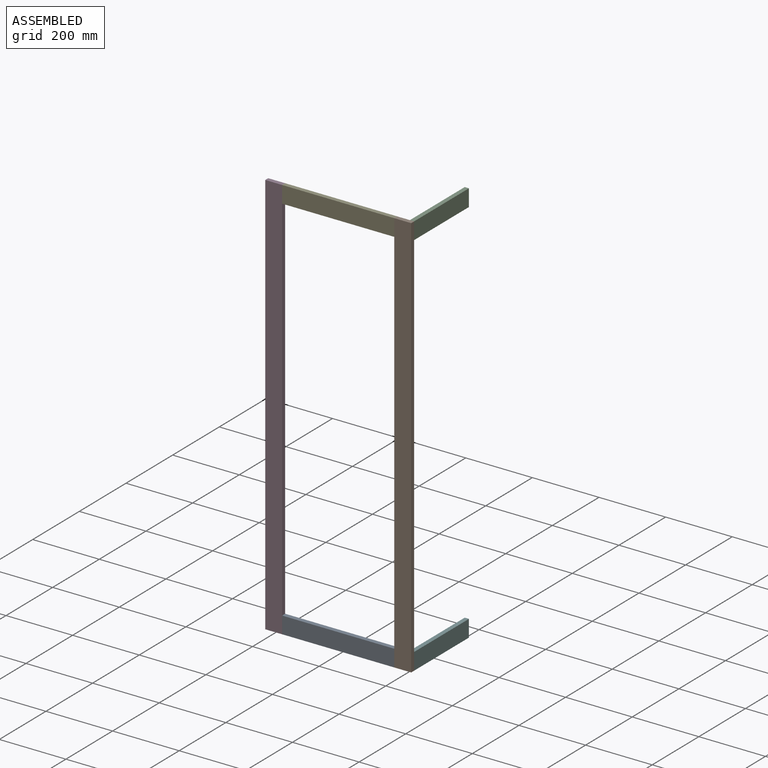
[diagram: assembled view]
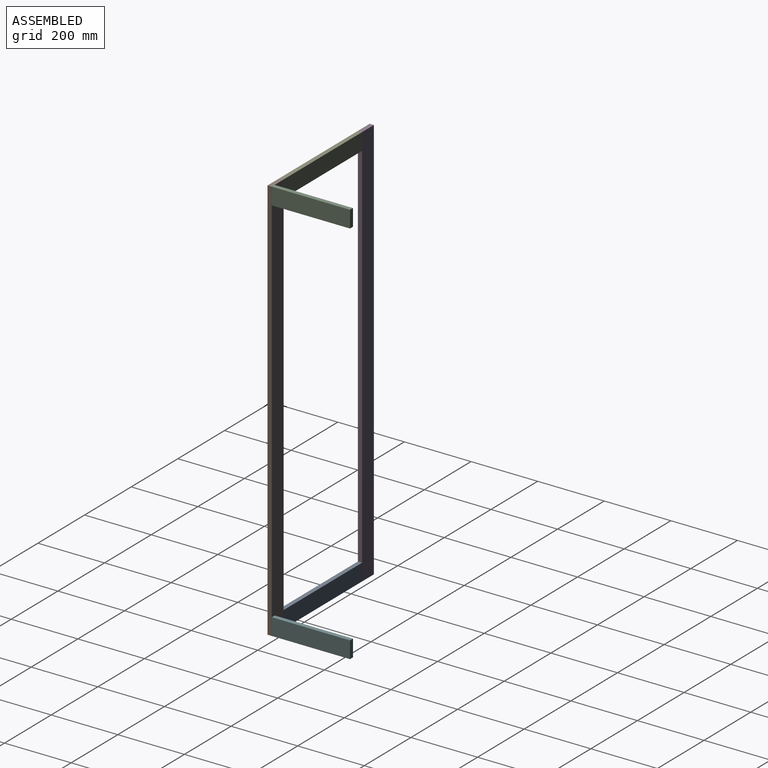
[diagram: assembled view, second angle]
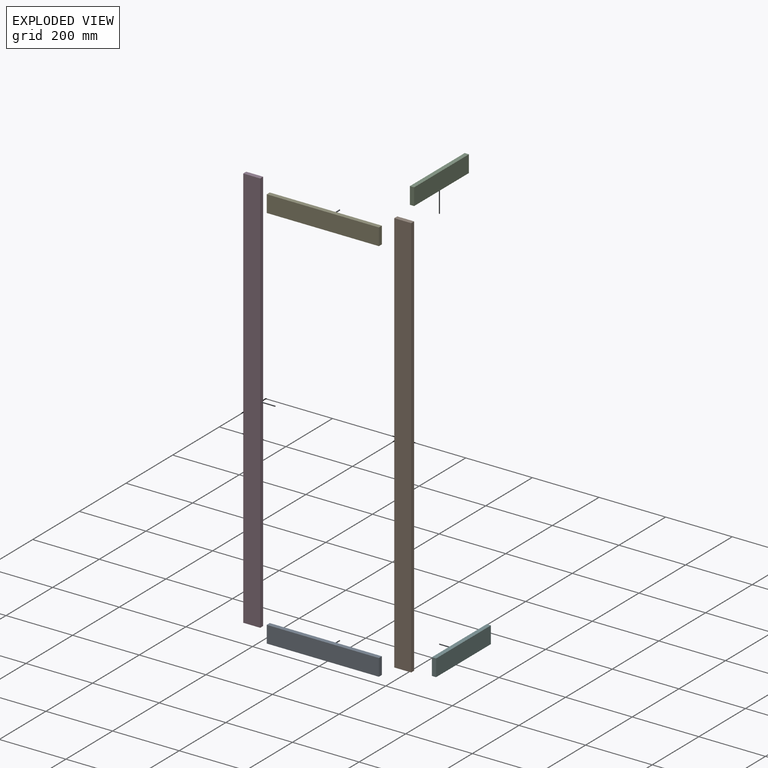
[diagram: exploded view]
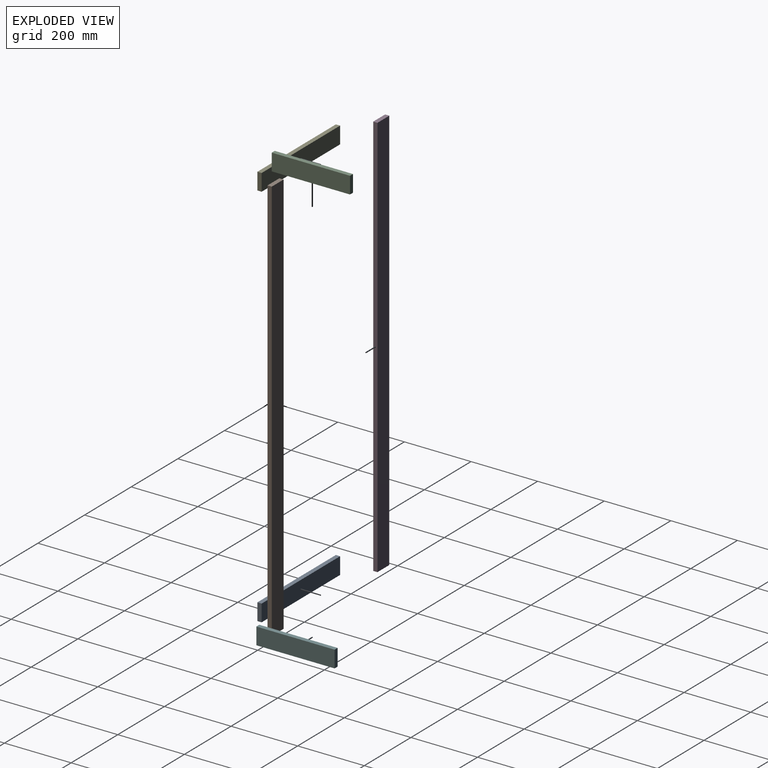
[diagram: exploded view, second angle]
ASSEMBLY  parts=6 mates=15
PART A: 6 faces, bbox 336.6x12.7x50.8 mm
  f0: plane 50.8x12.7mm, normal (1,0,0), area 645.2mm2, adj f1,f3,f4,f5
  f1: plane 336.55x12.7mm, normal (0,0,1), area 4274.2mm2, adj f0,f2,f4,f5
  f2: plane 50.8x12.7mm, normal (-1,0,0), area 645.2mm2, adj f1,f3,f4,f5
  f3: plane 336.55x12.7mm, normal (0,0,-1), area 4274.2mm2, adj f0,f2,f4,f5
  f4: plane 336.55x50.8mm, normal (0,-1,0), area 17096.7mm2, adj f0,f1,f2,f3
  f5: plane 336.55x50.8mm, normal (0,1,0), area 17096.7mm2, adj f0,f1,f2,f3
PART B: 6 faces, bbox 50.8x12.7x1219.2 mm
  f0: plane 1219.2x12.7mm, normal (1,0,0), area 15483.8mm2, adj f1,f3,f4,f5
  f1: plane 50.8x12.7mm, normal (0,0,1), area 645.2mm2, adj f0,f2,f4,f5
  f2: plane 1219.2x12.7mm, normal (-1,0,0), area 15483.8mm2, adj f1,f3,f4,f5
  f3: plane 50.8x12.7mm, normal (0,0,-1), area 645.2mm2, adj f0,f2,f4,f5
  f4: plane 1219.2x50.8mm, normal (0,-1,0), area 61935.4mm2, adj f0,f1,f2,f3
  f5: plane 1219.2x50.8mm, normal (0,1,0), area 61935.4mm2, adj f0,f1,f2,f3
PART C: 6 faces, bbox 235x12.7x50.8 mm
  f0: plane 50.8x12.7mm, normal (1,0,0), area 645.2mm2, adj f1,f3,f4,f5
  f1: plane 234.95x12.7mm, normal (0,0,1), area 2983.9mm2, adj f0,f2,f4,f5
  f2: plane 50.8x12.7mm, normal (-1,0,0), area 645.2mm2, adj f1,f3,f4,f5
  f3: plane 234.95x12.7mm, normal (0,0,-1), area 2983.9mm2, adj f0,f2,f4,f5
  f4: plane 234.95x50.8mm, normal (0,-1,0), area 11935.5mm2, adj f0,f1,f2,f3
  f5: plane 234.95x50.8mm, normal (0,1,0), area 11935.5mm2, adj f0,f1,f2,f3
PART D: same geometry as B
PART E: same geometry as A
PART F: same geometry as C
PLACE A t=(-193.67,0,-574.24)mm
PLACE B at identity fixed
PLACE C rot(axis=(0,0,1),90deg) t=(12.7,117.48,594.16)mm
PLACE D t=(-387.35,0,0)mm
PLACE E t=(-193.67,0,594.16)mm
PLACE F rot(axis=(0,0,-1),90deg) t=(25.4,117.47,-574.24)mm
MATE planar B.f4 <-> A.f4  axis (0,-1,0) through (-25.4,-12.7,-599.64)mm
MATE planar E.f4 <-> B.f4  axis (0,-1,0) through (-25.4,-12.7,619.56)mm
MATE planar F.f5 <-> B.f0  axis (1,0,0) through (25.4,0,-599.64)mm
MATE planar B.f1 <-> C.f1  axis (0,0,1) through (25.4,0,619.56)mm
MATE planar A.f3 <-> B.f3  axis (0,0,-1) through (-25.4,-12.7,-599.64)mm
MATE planar B.f5 <-> F.f0  axis (0,1,0) through (25.4,0,-599.64)mm
MATE planar D.f0 <-> A.f2  axis (1,0,0) through (-361.95,-12.7,-599.64)mm
MATE planar E.f0 <-> B.f2  axis (1,0,0) through (-25.4,-12.7,619.56)mm
MATE planar D.f4 <-> A.f4  axis (0,-1,0) through (-361.95,-12.7,-599.64)mm
MATE planar D.f3 <-> A.f3  axis (0,0,-1) through (-361.95,-12.7,-599.64)mm
MATE planar C.f4 <-> B.f0  axis (1,0,0) through (25.4,0,619.56)mm
MATE planar F.f3 <-> B.f3  axis (0,0,-1) through (12.7,0,-599.64)mm
MATE planar A.f0 <-> B.f2  axis (1,0,0) through (-25.4,-12.7,-599.64)mm
MATE planar B.f1 <-> E.f1  axis (0,0,1) through (-25.4,-12.7,619.56)mm
MATE planar B.f5 <-> C.f2  axis (0,1,0) through (25.4,0,619.56)mm
